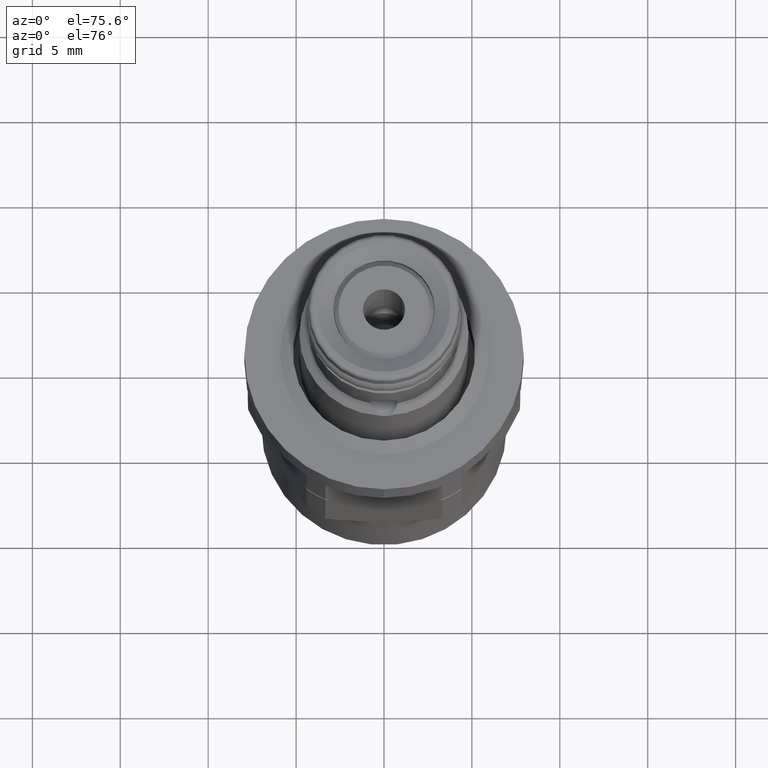
[diagram: clean part render]
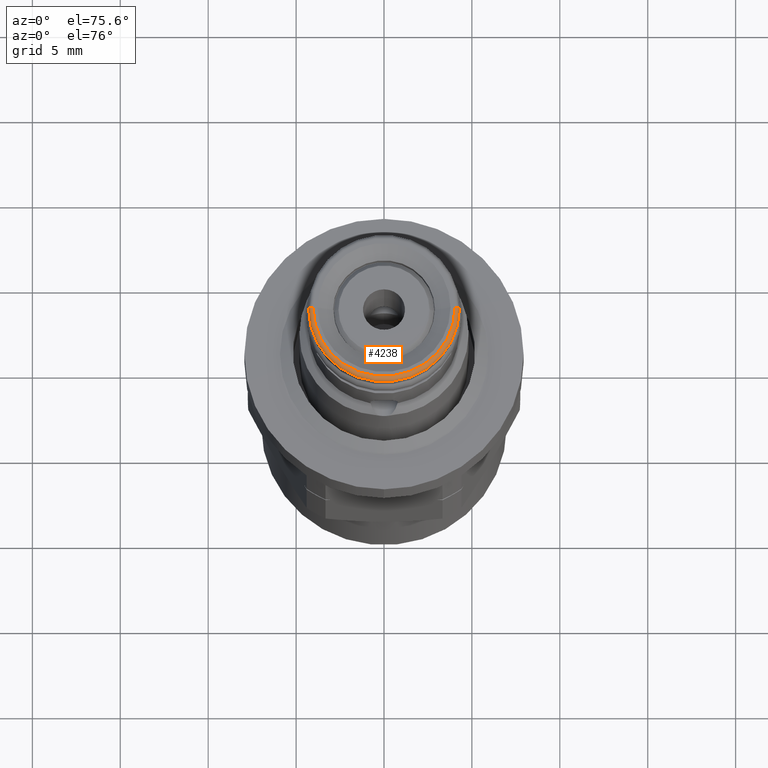
[diagram: same view with one face highlighted and labeled with its STEP entity id]
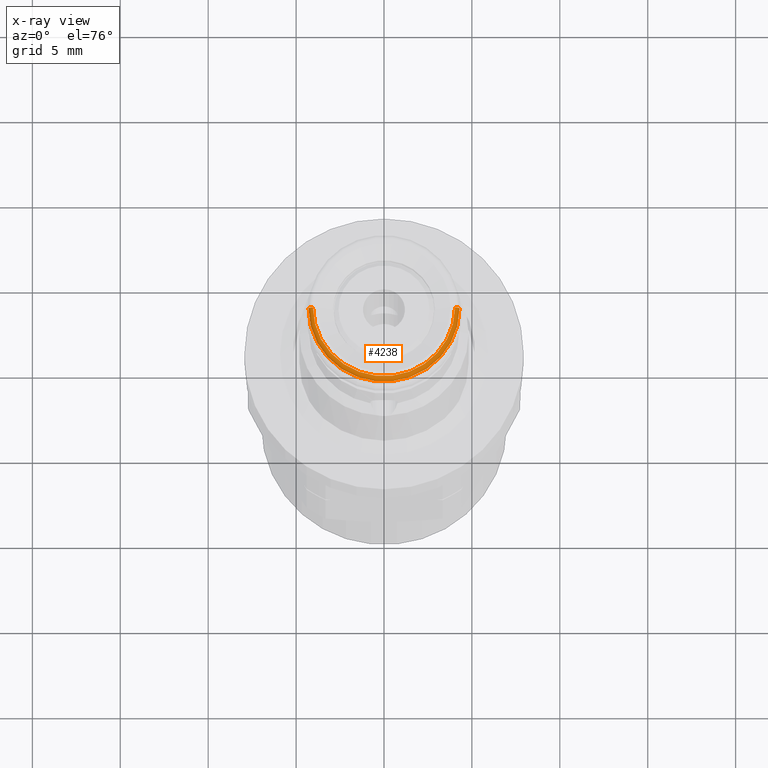
[diagram: x-ray of the same camera — body ghosted, the highlighted face saturated]
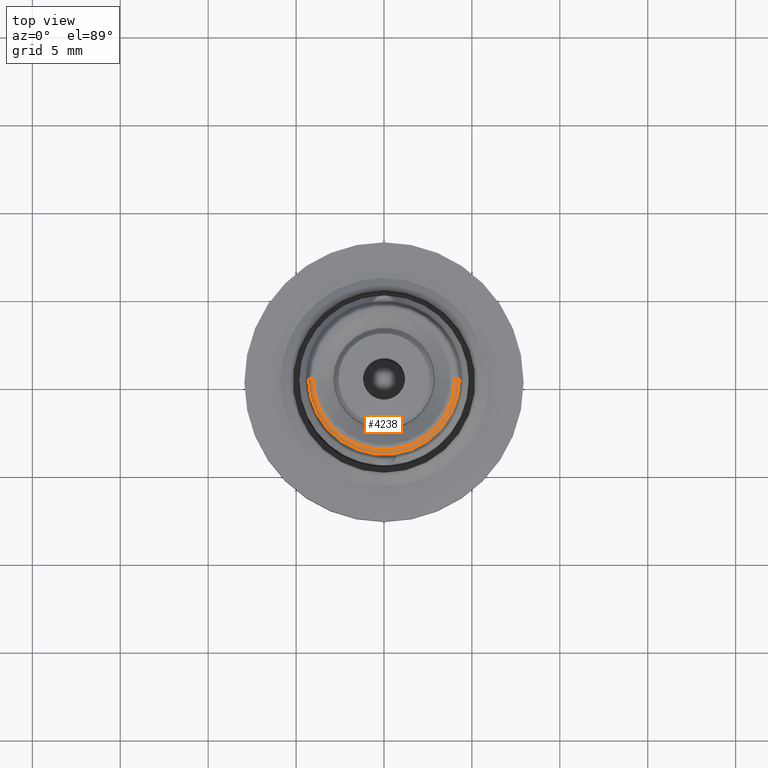
[diagram: same view with one face highlighted and labeled with its STEP entity id]
A machine part, auxiliary view. The second image highlights one B-rep face of the part: STEP entity #4238.
The next image is the same camera in x-ray: the body ghosted, the highlighted face saturated — about 0% of this face is hidden behind the body in this view.
A second angle (top view) of the same face is appended — the face is thin or edge-on in the first view.
In plain terms, the highlighted toroidal blend (fillet) surface has major radius 4.0386 mm and minor (blend) radius 0.254 mm.
Its self-contained STEP definition (entity closure, byte-faithful):
#4075=CARTESIAN_POINT('',(4.0386E0,0.E0,1.2414E1));
#4076=DIRECTION('',(0.E0,1.E0,0.E0));
#4077=DIRECTION('',(0.E0,0.E0,1.E0));
#4078=AXIS2_PLACEMENT_3D('',#4075,#4076,#4077);
#4085=CARTESIAN_POINT('',(0.E0,0.E0,1.2668E1));
#4086=DIRECTION('',(0.E0,0.E0,1.E0));
#4087=DIRECTION('',(-1.E0,0.E0,0.E0));
#4088=AXIS2_PLACEMENT_3D('',#4085,#4086,#4087);
#4090=CARTESIAN_POINT('',(-4.0386E0,0.E0,1.2414E1));
#4091=DIRECTION('',(0.E0,-1.E0,0.E0));
#4092=DIRECTION('',(0.E0,0.E0,1.E0));
#4093=AXIS2_PLACEMENT_3D('',#4090,#4091,#4092);
#4095=CARTESIAN_POINT('',(0.E0,0.E0,1.2414E1));
#4096=DIRECTION('',(0.E0,0.E0,1.E0));
#4097=DIRECTION('',(-1.E0,0.E0,0.E0));
#4098=AXIS2_PLACEMENT_3D('',#4095,#4096,#4097);
#4185=CARTESIAN_POINT('',(4.0386E0,0.E0,1.2668E1));
#4186=CARTESIAN_POINT('',(-4.0386E0,0.E0,1.2668E1));
#4187=VERTEX_POINT('',#4185);
#4188=VERTEX_POINT('',#4186);
#4189=CARTESIAN_POINT('',(4.2926E0,0.E0,1.2414E1));
#4190=CARTESIAN_POINT('',(-4.2926E0,0.E0,1.2414E1));
#4191=VERTEX_POINT('',#4189);
#4192=VERTEX_POINT('',#4190);
#4226=CARTESIAN_POINT('',(0.E0,0.E0,1.2414E1));
#4227=DIRECTION('',(0.E0,0.E0,-1.E0));
#4228=DIRECTION('',(-9.999808078290E-1,6.195480095614E-3,0.E0));
#4229=AXIS2_PLACEMENT_3D('',#4226,#4227,#4228);
#4230=TOROIDAL_SURFACE('',#4229,4.0386E0,2.54E-1);
#4231=ORIENTED_EDGE('',*,*,#4215,.T.);
#4232=ORIENTED_EDGE('',*,*,#4204,.T.);
#4234=ORIENTED_EDGE('',*,*,#4233,.F.);
#4235=ORIENTED_EDGE('',*,*,#4200,.F.);
#4236=EDGE_LOOP('',(#4231,#4232,#4234,#4235));
#4237=FACE_OUTER_BOUND('',#4236,.F.);
#4238=ADVANCED_FACE('',(#4237),#4230,.T.);
#4079=CIRCLE('',#4078,2.54E-1);
#4089=CIRCLE('',#4088,4.0386E0);
#4094=CIRCLE('',#4093,2.54E-1);
#4099=CIRCLE('',#4098,4.2926E0);
#4200=EDGE_CURVE('',#4188,#4192,#4094,.T.);
#4204=EDGE_CURVE('',#4187,#4191,#4079,.T.);
#4215=EDGE_CURVE('',#4188,#4187,#4089,.T.);
#4233=EDGE_CURVE('',#4192,#4191,#4099,.T.);